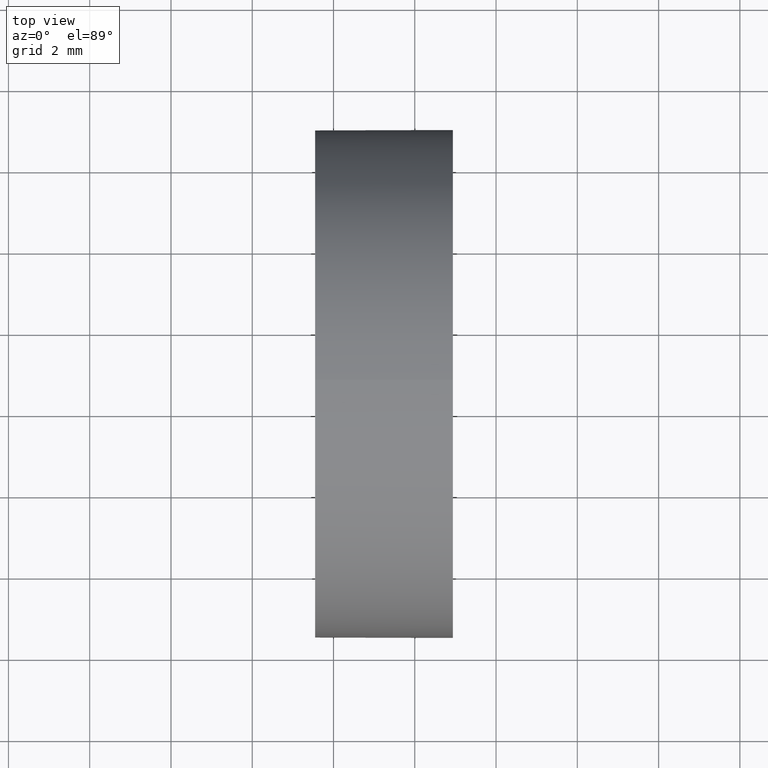
[diagram: clean part render]
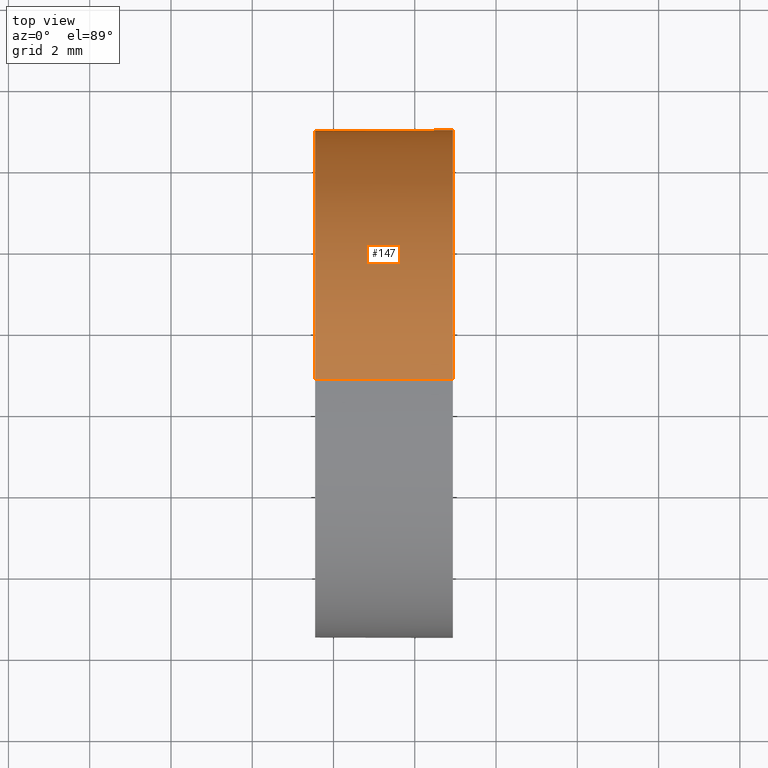
[diagram: same view with one face highlighted and labeled with its STEP entity id]
A machine part, top view. The second image highlights one B-rep face of the part: STEP entity #147.
In plain terms, the highlighted cylindrical surface (partial cylindrical patch) has radius 6.25 mm, axis along (-1, -0, -0).
Its self-contained STEP definition (entity closure, byte-faithful):
#1 = CARTESIAN_POINT ( 'NONE',  ( 57.54632776745975800, 34.68901056168621700, 0.0000000000000000000 ) ) ;
#2 = CIRCLE ( 'NONE', #156, 6.250000000000005300 ) ;
#7 = CARTESIAN_POINT ( 'NONE',  ( 57.54632776745975800, 34.68901056168621700, 6.249999999999998200 ) ) ;
#9 = CARTESIAN_POINT ( 'NONE',  ( 60.93849051950596200, 40.93901056168623100, 7.654042494670954600E-016 ) ) ;
#13 = ORIENTED_EDGE ( 'NONE', *, *, #37, .F. ) ;
#14 = ORIENTED_EDGE ( 'NONE', *, *, #107, .T. ) ;
#20 = ORIENTED_EDGE ( 'NONE', *, *, #29, .T. ) ;
#21 = CARTESIAN_POINT ( 'NONE',  ( 57.54632776745975800, 34.68901056168621700, -6.249999999999998200 ) ) ;
#25 = DIRECTION ( 'NONE',  ( -1.000000000000000000, -0.0000000000000000000, -0.0000000000000000000 ) ) ;
#29 = EDGE_CURVE ( 'NONE', #104, #31, #90, .T. ) ;
#31 = VERTEX_POINT ( 'NONE', #21 ) ;
#33 = AXIS2_PLACEMENT_3D ( 'NONE', #86, #25, #55 ) ;
#34 = CARTESIAN_POINT ( 'NONE',  ( 54.49257150108255100, 34.68901056168621700, 6.250000000000001800 ) ) ;
#35 = CARTESIAN_POINT ( 'NONE',  ( 54.49257150108255100, 34.68901056168621700, -6.250000000000001800 ) ) ;
#37 = EDGE_CURVE ( 'NONE', #94, #66, #168, .T. ) ;
#38 = DIRECTION ( 'NONE',  ( -1.000000000000000000, -0.0000000000000000000, -0.0000000000000000000 ) ) ;
#42 = CIRCLE ( 'NONE', #33, 6.250000000000005300 ) ;
#48 = VERTEX_POINT ( 'NONE', #9 ) ;
#55 = DIRECTION ( 'NONE',  ( 0.0000000000000000000, 0.0000000000000000000, 1.000000000000000000 ) ) ;
#56 = CARTESIAN_POINT ( 'NONE',  ( 60.93849051950596200, 34.68901056168621700, 6.250000000000004400 ) ) ;
#66 = VERTEX_POINT ( 'NONE', #7 ) ;
#83 = ORIENTED_EDGE ( 'NONE', *, *, #96, .T. ) ;
#86 = CARTESIAN_POINT ( 'NONE',  ( 60.93849051950596200, 34.68901056168621700, 0.0000000000000000000 ) ) ;
#87 = DIRECTION ( 'NONE',  ( 0.0000000000000000000, 0.0000000000000000000, 1.000000000000000000 ) ) ;
#89 = CIRCLE ( 'NONE', #117, 6.249999999999998200 ) ;
#90 = LINE ( 'NONE', #35, #116 ) ;
#94 = VERTEX_POINT ( 'NONE', #56 ) ;
#95 = DIRECTION ( 'NONE',  ( -1.000000000000000000, -0.0000000000000000000, -0.0000000000000000000 ) ) ;
#96 = EDGE_CURVE ( 'NONE', #48, #104, #2, .T. ) ;
#99 = DIRECTION ( 'NONE',  ( 0.0000000000000000000, 0.0000000000000000000, 1.000000000000000000 ) ) ;
#100 = FACE_OUTER_BOUND ( 'NONE', #118, .T. ) ;
#104 = VERTEX_POINT ( 'NONE', #183 ) ;
#105 = EDGE_CURVE ( 'NONE', #66, #31, #89, .T. ) ;
#107 = EDGE_CURVE ( 'NONE', #94, #48, #42, .T. ) ;
#108 = DIRECTION ( 'NONE',  ( -1.000000000000000000, -0.0000000000000000000, -0.0000000000000000000 ) ) ;
#113 = CYLINDRICAL_SURFACE ( 'NONE', #151, 6.250000000000001800 ) ;
#116 = VECTOR ( 'NONE', #137, 1000.000000000000000 ) ;
#117 = AXIS2_PLACEMENT_3D ( 'NONE', #1, #171, #99 ) ;
#118 = EDGE_LOOP ( 'NONE', ( #83, #20, #144, #13, #14 ) ) ;
#123 = CARTESIAN_POINT ( 'NONE',  ( 54.49257150108255100, 34.68901056168621700, 0.0000000000000000000 ) ) ;
#128 = VECTOR ( 'NONE', #108, 1000.000000000000000 ) ;
#137 = DIRECTION ( 'NONE',  ( -1.000000000000000000, -0.0000000000000000000, -0.0000000000000000000 ) ) ;
#144 = ORIENTED_EDGE ( 'NONE', *, *, #105, .F. ) ;
#147 = ADVANCED_FACE ( 'NONE', ( #100 ), #113, .T. ) ;
#151 = AXIS2_PLACEMENT_3D ( 'NONE', #123, #95, #87 ) ;
#156 = AXIS2_PLACEMENT_3D ( 'NONE', #182, #38, #176 ) ;
#168 = LINE ( 'NONE', #34, #128 ) ;
#171 = DIRECTION ( 'NONE',  ( -1.000000000000000000, -0.0000000000000000000, -0.0000000000000000000 ) ) ;
#176 = DIRECTION ( 'NONE',  ( 0.0000000000000000000, 0.0000000000000000000, 1.000000000000000000 ) ) ;
#182 = CARTESIAN_POINT ( 'NONE',  ( 60.93849051950596200, 34.68901056168621700, 0.0000000000000000000 ) ) ;
#183 = CARTESIAN_POINT ( 'NONE',  ( 60.93849051950596200, 34.68901056168621700, -6.250000000000004400 ) ) ;